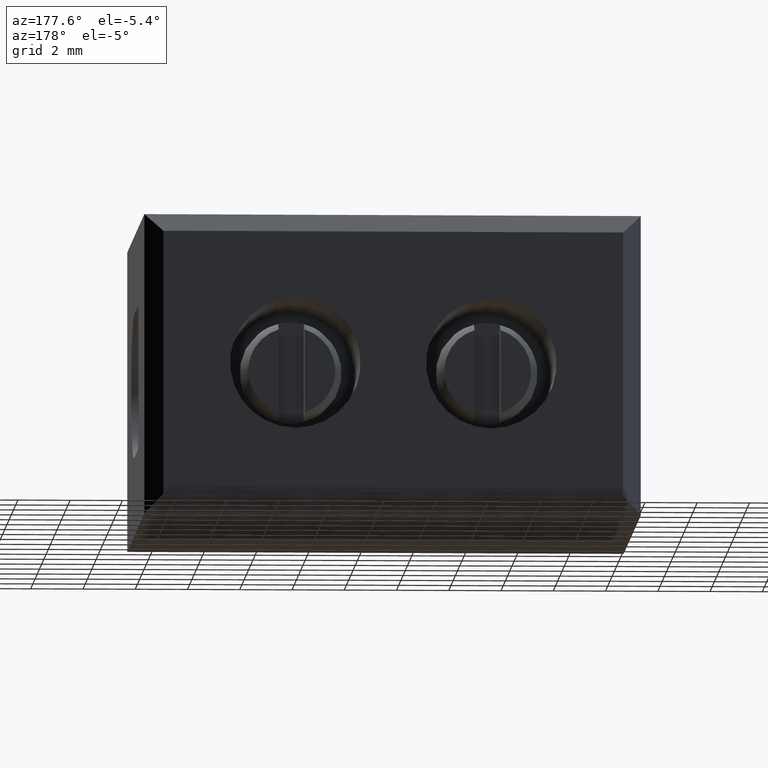
[diagram: clean part render]
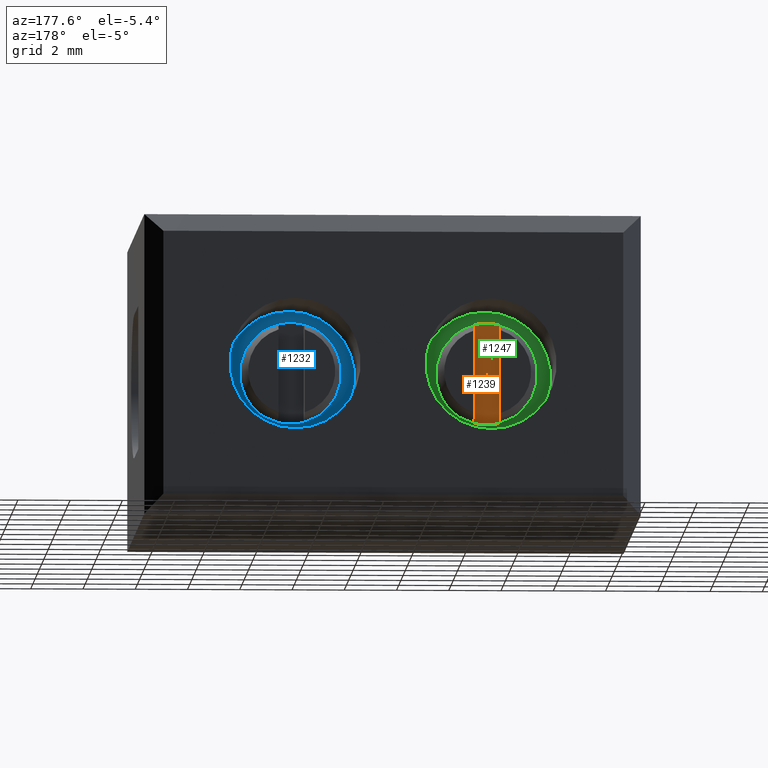
[diagram: same view with three faces highlighted in distinct colors, each labeled with its STEP entity id]
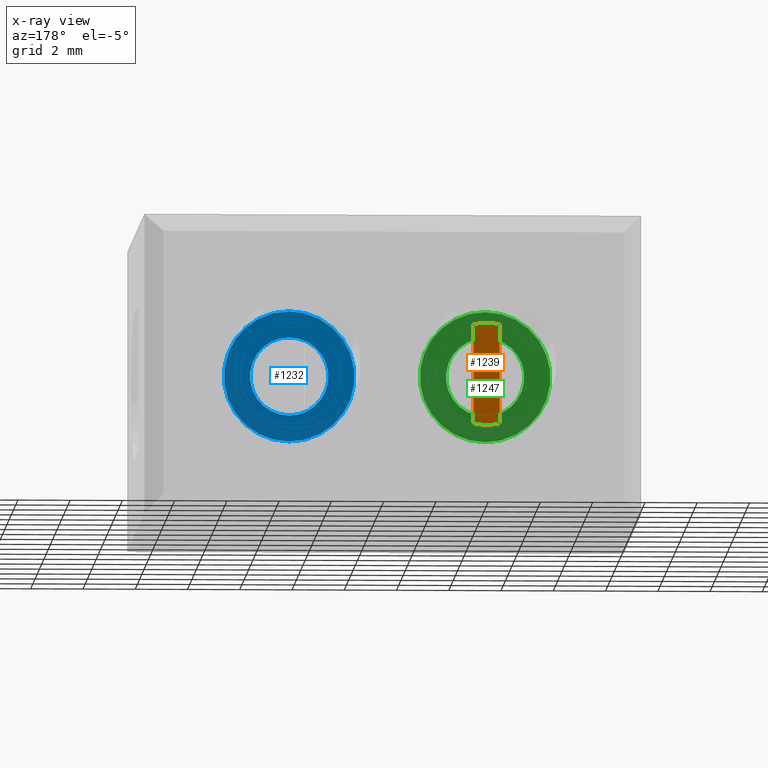
[diagram: x-ray of the same camera — body ghosted, the three highlighted faces saturated]
A machine part, auxiliary view with three faces highlighted in distinct colors.
The next image is the same camera in x-ray (body ghosted, the three faces saturated) — at least one of them is partly hidden behind the body in this view.
Their STEP definitions:

[orange] entity #1239 — the highlighted planar face has unit normal (0, -1, 0).
#297 = CARTESIAN_POINT ( 'NONE',  ( 5.003805710854923200, 12.70395872483566900, -7.384762715957152500 ) ) ;
#331 = CARTESIAN_POINT ( 'NONE',  ( 5.503805710850900600, 12.70395872483566900, -3.549813653713775000 ) ) ;
#339 = CARTESIAN_POINT ( 'NONE',  ( 6.003805710854924100, 12.70395872483566900, -3.615003567829067100 ) ) ;
#381 = CARTESIAN_POINT ( 'NONE',  ( 5.503805710850899800, 12.70395872483566900, -7.449952630070308500 ) ) ;
#382 = CARTESIAN_POINT ( 'NONE',  ( 5.003805710854923200, 12.70395872483566900, -3.615003567826931400 ) ) ;
#387 = CARTESIAN_POINT ( 'NONE',  ( 6.003805710854924100, 12.70395872483566900, -7.384762715955017300 ) ) ;
#460 = DIRECTION ( 'NONE',  ( -0.0000000000000000000, -1.000000000000000000, -0.0000000000000000000 ) ) ;
#461 = DIRECTION ( 'NONE',  ( 0.0000000000000000000, 0.0000000000000000000, -1.000000000000000000 ) ) ;
#468 = CARTESIAN_POINT ( 'NONE',  ( 5.503805710850899800, 12.70395872483566900, -5.499883141892041700 ) ) ;
#585 = VERTEX_POINT ( 'NONE', #297 ) ;
#590 = VERTEX_POINT ( 'NONE', #331 ) ;
#595 = VERTEX_POINT ( 'NONE', #339 ) ;
#600 = VERTEX_POINT ( 'NONE', #381 ) ;
#619 = VERTEX_POINT ( 'NONE', #382 ) ;
#654 = VERTEX_POINT ( 'NONE', #387 ) ;
#745 = EDGE_LOOP ( 'NONE', ( #907, #899, #889, #870, #855, #873 ) ) ;
#855 = ORIENTED_EDGE ( 'NONE', *, *, #1057, .T. ) ;
#870 = ORIENTED_EDGE ( 'NONE', *, *, #1045, .F. ) ;
#873 = ORIENTED_EDGE ( 'NONE', *, *, #1012, .F. ) ;
#889 = ORIENTED_EDGE ( 'NONE', *, *, #1123, .F. ) ;
#899 = ORIENTED_EDGE ( 'NONE', *, *, #1061, .T. ) ;
#907 = ORIENTED_EDGE ( 'NONE', *, *, #1090, .F. ) ;
#1012 = EDGE_CURVE ( 'NONE', #590, #619, #1376, .T. ) ;
#1045 = EDGE_CURVE ( 'NONE', #585, #600, #1400, .T. ) ;
#1057 = EDGE_CURVE ( 'NONE', #585, #619, #1733, .T. ) ;
#1061 = EDGE_CURVE ( 'NONE', #595, #654, #1721, .T. ) ;
#1090 = EDGE_CURVE ( 'NONE', #595, #590, #1497, .T. ) ;
#1123 = EDGE_CURVE ( 'NONE', #600, #654, #1458, .T. ) ;
#1239 = ADVANCED_FACE ( 'NONE', ( #2345 ), #2350, .F. ) ;
#1360 = AXIS2_PLACEMENT_3D ( 'NONE', #468, #460, #461 ) ;
#1376 = CIRCLE ( 'NONE', #1360, 1.950069488178266500 ) ;
#1400 = CIRCLE ( 'NONE', #1408, 1.950069488178266500 ) ;
#1402 = VECTOR ( 'NONE', #1713, 1000.000000000000000 ) ;
#1408 = AXIS2_PLACEMENT_3D ( 'NONE', #2752, #2765, #2746 ) ;
#1439 = VECTOR ( 'NONE', #1726, 1000.000000000000000 ) ;
#1449 = AXIS2_PLACEMENT_3D ( 'NONE', #1838, #1822, #1816 ) ;
#1458 = CIRCLE ( 'NONE', #1459, 1.950069488178266500 ) ;
#1459 = AXIS2_PLACEMENT_3D ( 'NONE', #1911, #1919, #1899 ) ;
#1497 = CIRCLE ( 'NONE', #1449, 1.950069488178266500 ) ;
#1634 = AXIS2_PLACEMENT_3D ( 'NONE', #2352, #2311, #2343 ) ;
#1710 = CARTESIAN_POINT ( 'NONE',  ( 5.003805710854923200, 12.70395872483566900, -7.632272493132652400 ) ) ;
#1713 = DIRECTION ( 'NONE',  ( 1.016889501773887800E-016, 0.0000000000000000000, 1.000000000000000000 ) ) ;
#1721 = LINE ( 'NONE', #1748, #1439 ) ;
#1726 = DIRECTION ( 'NONE',  ( -1.271111877217359700E-016, 0.0000000000000000000, -1.000000000000000000 ) ) ;
#1733 = LINE ( 'NONE', #1710, #1402 ) ;
#1748 = CARTESIAN_POINT ( 'NONE',  ( 6.003805710854924100, 12.70395872483566900, -7.632272493132652400 ) ) ;
#1816 = DIRECTION ( 'NONE',  ( 0.0000000000000000000, 0.0000000000000000000, -1.000000000000000000 ) ) ;
#1822 = DIRECTION ( 'NONE',  ( -0.0000000000000000000, -1.000000000000000000, -0.0000000000000000000 ) ) ;
#1838 = CARTESIAN_POINT ( 'NONE',  ( 5.503805710850899800, 12.70395872483566900, -5.499883141892041700 ) ) ;
#1899 = DIRECTION ( 'NONE',  ( 0.0000000000000000000, 0.0000000000000000000, -1.000000000000000000 ) ) ;
#1911 = CARTESIAN_POINT ( 'NONE',  ( 5.503805710850899800, 12.70395872483566900, -5.499883141892041700 ) ) ;
#1919 = DIRECTION ( 'NONE',  ( -0.0000000000000000000, -1.000000000000000000, -0.0000000000000000000 ) ) ;
#2311 = DIRECTION ( 'NONE',  ( 0.0000000000000000000, -1.000000000000000000, 0.0000000000000000000 ) ) ;
#2343 = DIRECTION ( 'NONE',  ( 0.0000000000000000000, -0.0000000000000000000, -1.000000000000000000 ) ) ;
#2345 = FACE_OUTER_BOUND ( 'NONE', #745, .T. ) ;
#2350 = PLANE ( 'NONE',  #1634 ) ;
#2352 = CARTESIAN_POINT ( 'NONE',  ( 5.003805710854923200, 12.70395872483566900, -3.367493790651430600 ) ) ;
#2746 = DIRECTION ( 'NONE',  ( 0.0000000000000000000, 0.0000000000000000000, -1.000000000000000000 ) ) ;
#2752 = CARTESIAN_POINT ( 'NONE',  ( 5.503805710850899800, 12.70395872483566900, -5.499883141892041700 ) ) ;
#2765 = DIRECTION ( 'NONE',  ( -0.0000000000000000000, -1.000000000000000000, -0.0000000000000000000 ) ) ;

[blue] entity #1232 — the highlighted planar face has unit normal (0, 1, 0).
#48 = ORIENTED_EDGE ( 'NONE', *, *, #1065, .T. ) ;
#68 = ORIENTED_EDGE ( 'NONE', *, *, #1095, .T. ) ;
#83 = ORIENTED_EDGE ( 'NONE', *, *, #1122, .T. ) ;
#290 = CARTESIAN_POINT ( 'NONE',  ( 13.00380571085090000, 11.38038375826683600, -7.999883141892046200 ) ) ;
#362 = CARTESIAN_POINT ( 'NONE',  ( 13.00380571085090000, 11.38038375826683600, -2.999883141892040900 ) ) ;
#366 = CARTESIAN_POINT ( 'NONE',  ( 13.00380571085090000, 11.38038375826683600, -3.999883141888016100 ) ) ;
#373 = CARTESIAN_POINT ( 'NONE',  ( 13.00380571085090000, 11.38038375826683600, -6.999883141896067900 ) ) ;
#583 = VERTEX_POINT ( 'NONE', #290 ) ;
#603 = VERTEX_POINT ( 'NONE', #362 ) ;
#618 = VERTEX_POINT ( 'NONE', #366 ) ;
#638 = VERTEX_POINT ( 'NONE', #373 ) ;
#698 = EDGE_LOOP ( 'NONE', ( #48, #83 ) ) ;
#730 = EDGE_LOOP ( 'NONE', ( #68, #964 ) ) ;
#964 = ORIENTED_EDGE ( 'NONE', *, *, #1064, .T. ) ;
#1064 = EDGE_CURVE ( 'NONE', #583, #603, #1420, .T. ) ;
#1065 = EDGE_CURVE ( 'NONE', #638, #618, #1387, .T. ) ;
#1095 = EDGE_CURVE ( 'NONE', #603, #583, #1464, .T. ) ;
#1122 = EDGE_CURVE ( 'NONE', #618, #638, #1482, .T. ) ;
#1232 = ADVANCED_FACE ( 'NONE', ( #2291, #2256 ), #2292, .T. ) ;
#1387 = CIRCLE ( 'NONE', #1419, 1.500000000004025900 ) ;
#1397 = AXIS2_PLACEMENT_3D ( 'NONE', #1740, #1742, #1719 ) ;
#1419 = AXIS2_PLACEMENT_3D ( 'NONE', #1731, #1741, #1743 ) ;
#1420 = CIRCLE ( 'NONE', #1397, 2.500000000000002200 ) ;
#1456 = AXIS2_PLACEMENT_3D ( 'NONE', #1908, #1893, #1923 ) ;
#1464 = CIRCLE ( 'NONE', #1503, 2.500000000000002200 ) ;
#1482 = CIRCLE ( 'NONE', #1456, 1.500000000004025900 ) ;
#1503 = AXIS2_PLACEMENT_3D ( 'NONE', #1820, #1823, #1827 ) ;
#1604 = AXIS2_PLACEMENT_3D ( 'NONE', #2263, #2273, #2277 ) ;
#1719 = DIRECTION ( 'NONE',  ( 0.0000000000000000000, 0.0000000000000000000, 1.000000000000000000 ) ) ;
#1731 = CARTESIAN_POINT ( 'NONE',  ( 13.00380571085090000, 11.38038375826683600, -5.499883141892041700 ) ) ;
#1740 = CARTESIAN_POINT ( 'NONE',  ( 13.00380571085090000, 11.38038375826683600, -5.499883141892042600 ) ) ;
#1741 = DIRECTION ( 'NONE',  ( -0.0000000000000000000, -1.000000000000000000, -0.0000000000000000000 ) ) ;
#1742 = DIRECTION ( 'NONE',  ( 0.0000000000000000000, 1.000000000000000000, 0.0000000000000000000 ) ) ;
#1743 = DIRECTION ( 'NONE',  ( 0.0000000000000000000, 0.0000000000000000000, -1.000000000000000000 ) ) ;
#1820 = CARTESIAN_POINT ( 'NONE',  ( 13.00380571085090000, 11.38038375826683600, -5.499883141892042600 ) ) ;
#1823 = DIRECTION ( 'NONE',  ( 0.0000000000000000000, 1.000000000000000000, 0.0000000000000000000 ) ) ;
#1827 = DIRECTION ( 'NONE',  ( 0.0000000000000000000, 0.0000000000000000000, 1.000000000000000000 ) ) ;
#1893 = DIRECTION ( 'NONE',  ( -0.0000000000000000000, -1.000000000000000000, -0.0000000000000000000 ) ) ;
#1908 = CARTESIAN_POINT ( 'NONE',  ( 13.00380571085090000, 11.38038375826683600, -5.499883141892041700 ) ) ;
#1923 = DIRECTION ( 'NONE',  ( 0.0000000000000000000, 0.0000000000000000000, -1.000000000000000000 ) ) ;
#2256 = FACE_BOUND ( 'NONE', #698, .T. ) ;
#2263 = CARTESIAN_POINT ( 'NONE',  ( 3.503805715609657600, 11.38038375826683600, -25.66022831229118500 ) ) ;
#2273 = DIRECTION ( 'NONE',  ( 0.0000000000000000000, 1.000000000000000000, 0.0000000000000000000 ) ) ;
#2277 = DIRECTION ( 'NONE',  ( 0.0000000000000000000, -0.0000000000000000000, 1.000000000000000000 ) ) ;
#2291 = FACE_OUTER_BOUND ( 'NONE', #730, .T. ) ;
#2292 = PLANE ( 'NONE',  #1604 ) ;

[green] entity #1247 — the highlighted planar face has unit normal (0, 1, 0).
#41 = ORIENTED_EDGE ( 'NONE', *, *, #1080, .T. ) ;
#43 = ORIENTED_EDGE ( 'NONE', *, *, #1011, .T. ) ;
#64 = ORIENTED_EDGE ( 'NONE', *, *, #1128, .T. ) ;
#73 = ORIENTED_EDGE ( 'NONE', *, *, #1096, .T. ) ;
#293 = CARTESIAN_POINT ( 'NONE',  ( 5.503805710850899800, 11.38038375826683600, -6.999883141896067900 ) ) ;
#319 = CARTESIAN_POINT ( 'NONE',  ( 5.503805710850900600, 11.38038375826683600, -2.999883141892040900 ) ) ;
#352 = CARTESIAN_POINT ( 'NONE',  ( 5.503805710850899800, 11.38038375826683600, -3.999883141888016100 ) ) ;
#356 = CARTESIAN_POINT ( 'NONE',  ( 5.503805710850900600, 11.38038375826683600, -7.999883141892044400 ) ) ;
#434 = CARTESIAN_POINT ( 'NONE',  ( 5.503805710850900600, 11.38038375826683600, -5.499883141892041700 ) ) ;
#435 = DIRECTION ( 'NONE',  ( 0.0000000000000000000, 1.000000000000000000, 0.0000000000000000000 ) ) ;
#436 = DIRECTION ( 'NONE',  ( 0.0000000000000000000, 0.0000000000000000000, 1.000000000000000000 ) ) ;
#566 = VERTEX_POINT ( 'NONE', #319 ) ;
#597 = VERTEX_POINT ( 'NONE', #293 ) ;
#632 = VERTEX_POINT ( 'NONE', #352 ) ;
#633 = VERTEX_POINT ( 'NONE', #356 ) ;
#717 = EDGE_LOOP ( 'NONE', ( #64, #73 ) ) ;
#765 = EDGE_LOOP ( 'NONE', ( #41, #43 ) ) ;
#1011 = EDGE_CURVE ( 'NONE', #633, #566, #1369, .T. ) ;
#1080 = EDGE_CURVE ( 'NONE', #566, #633, #1434, .T. ) ;
#1096 = EDGE_CURVE ( 'NONE', #632, #597, #1474, .T. ) ;
#1128 = EDGE_CURVE ( 'NONE', #597, #632, #1493, .T. ) ;
#1247 = ADVANCED_FACE ( 'NONE', ( #2361, #2406 ), #2381, .T. ) ;
#1368 = AXIS2_PLACEMENT_3D ( 'NONE', #434, #435, #436 ) ;
#1369 = CIRCLE ( 'NONE', #1368, 2.500000000000001300 ) ;
#1434 = CIRCLE ( 'NONE', #1435, 2.500000000000001300 ) ;
#1435 = AXIS2_PLACEMENT_3D ( 'NONE', #1785, #1786, #1787 ) ;
#1474 = CIRCLE ( 'NONE', #1489, 1.500000000004025900 ) ;
#1489 = AXIS2_PLACEMENT_3D ( 'NONE', #1812, #1818, #1862 ) ;
#1493 = CIRCLE ( 'NONE', #1496, 1.500000000004025900 ) ;
#1496 = AXIS2_PLACEMENT_3D ( 'NONE', #1956, #1957, #1932 ) ;
#1633 = AXIS2_PLACEMENT_3D ( 'NONE', #2363, #2407, #2395 ) ;
#1785 = CARTESIAN_POINT ( 'NONE',  ( 5.503805710850900600, 11.38038375826683600, -5.499883141892041700 ) ) ;
#1786 = DIRECTION ( 'NONE',  ( 0.0000000000000000000, 1.000000000000000000, 0.0000000000000000000 ) ) ;
#1787 = DIRECTION ( 'NONE',  ( 0.0000000000000000000, 0.0000000000000000000, 1.000000000000000000 ) ) ;
#1812 = CARTESIAN_POINT ( 'NONE',  ( 5.503805710850899800, 11.38038375826683600, -5.499883141892041700 ) ) ;
#1818 = DIRECTION ( 'NONE',  ( -0.0000000000000000000, -1.000000000000000000, -0.0000000000000000000 ) ) ;
#1862 = DIRECTION ( 'NONE',  ( 0.0000000000000000000, 0.0000000000000000000, -1.000000000000000000 ) ) ;
#1932 = DIRECTION ( 'NONE',  ( 0.0000000000000000000, 0.0000000000000000000, -1.000000000000000000 ) ) ;
#1956 = CARTESIAN_POINT ( 'NONE',  ( 5.503805710850899800, 11.38038375826683600, -5.499883141892041700 ) ) ;
#1957 = DIRECTION ( 'NONE',  ( -0.0000000000000000000, -1.000000000000000000, -0.0000000000000000000 ) ) ;
#2361 = FACE_OUTER_BOUND ( 'NONE', #765, .T. ) ;
#2363 = CARTESIAN_POINT ( 'NONE',  ( 3.503805715609657600, 11.38038375826683600, -25.66022831229118500 ) ) ;
#2381 = PLANE ( 'NONE',  #1633 ) ;
#2395 = DIRECTION ( 'NONE',  ( 0.0000000000000000000, -0.0000000000000000000, 1.000000000000000000 ) ) ;
#2406 = FACE_BOUND ( 'NONE', #717, .T. ) ;
#2407 = DIRECTION ( 'NONE',  ( 0.0000000000000000000, 1.000000000000000000, 0.0000000000000000000 ) ) ;